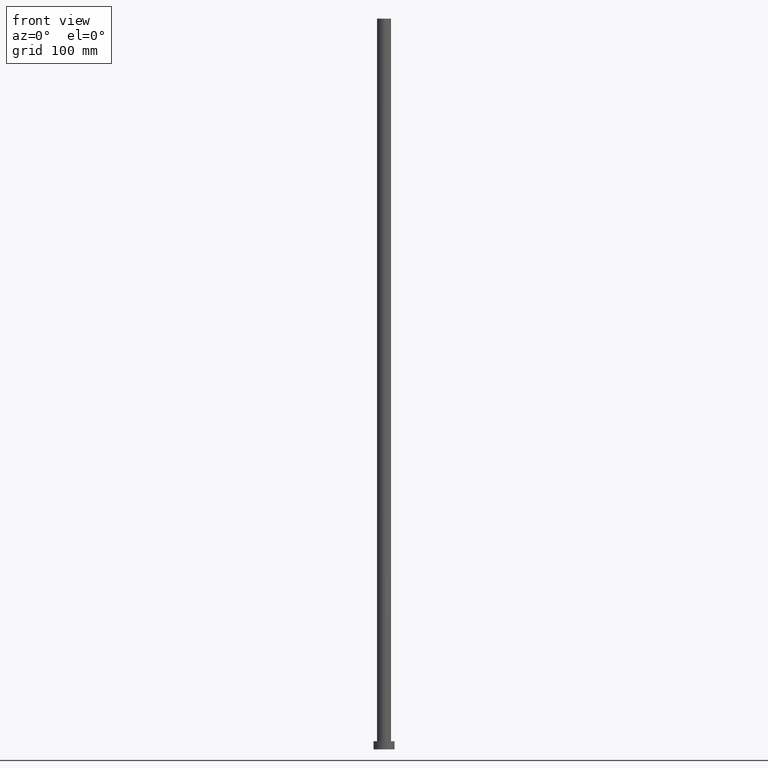
[diagram: clean part render]
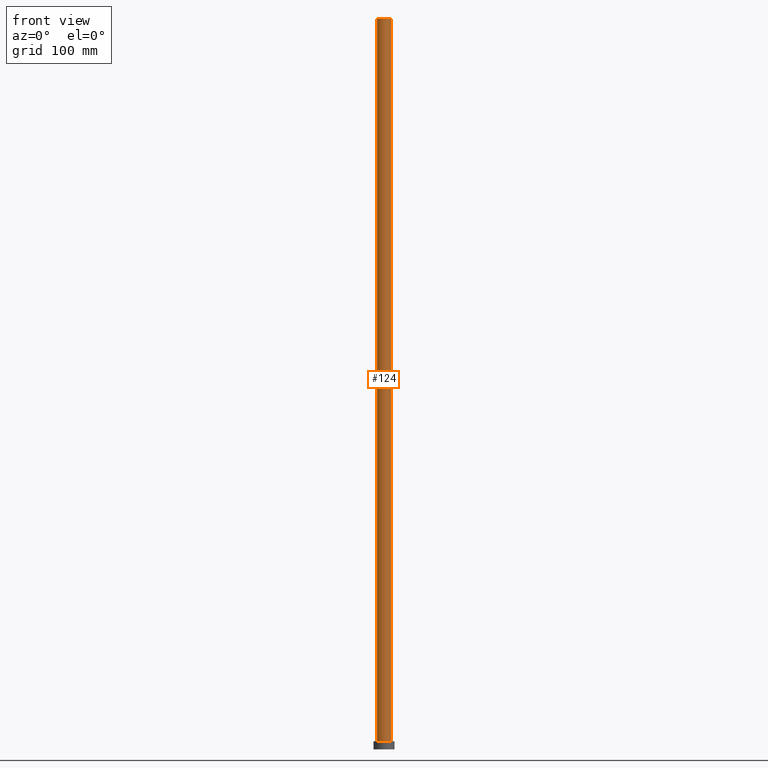
[diagram: same view with one face highlighted and labeled with its STEP entity id]
A machine part, front view. The second image highlights one B-rep face of the part: STEP entity #124.
In plain terms, the highlighted cylindrical surface (edge-blend (fillet) strip) has radius 6 mm, axis along (-0, -0, -1).
Its self-contained STEP definition (entity closure, byte-faithful):
#21 = CARTESIAN_POINT ( 'NONE',  ( 6.000000000000000888, 7.347880794884120722E-16, 7.000000000000000000 ) ) ;
#26 = EDGE_CURVE ( 'NONE', #88, #222, #193, .T. ) ;
#29 = ORIENTED_EDGE ( 'NONE', *, *, #199, .F. ) ;
#45 = ORIENTED_EDGE ( 'NONE', *, *, #241, .T. ) ;
#58 = ORIENTED_EDGE ( 'NONE', *, *, #26, .T. ) ;
#72 = CYLINDRICAL_SURFACE ( 'NONE', #202, 6.000000000000000888 ) ;
#81 = AXIS2_PLACEMENT_3D ( 'NONE', #104, #146, #167 ) ;
#83 = VERTEX_POINT ( 'NONE', #213 ) ;
#86 = DIRECTION ( 'NONE',  ( 0.000000000000000000, 0.000000000000000000, 1.000000000000000000 ) ) ;
#88 = VERTEX_POINT ( 'NONE', #191 ) ;
#101 = VECTOR ( 'NONE', #247, 1000.000000000000000 ) ;
#102 = DIRECTION ( 'NONE',  ( 1.000000000000000000, 0.000000000000000000, 0.000000000000000000 ) ) ;
#104 = CARTESIAN_POINT ( 'NONE',  ( 0.000000000000000000, 0.000000000000000000, 7.000000000000000000 ) ) ;
#109 = CIRCLE ( 'NONE', #243, 6.000000000000000888 ) ;
#113 = DIRECTION ( 'NONE',  ( -1.000000000000000000, 0.000000000000000000, 0.000000000000000000 ) ) ;
#124 = ADVANCED_FACE ( 'NONE', ( #249 ), #72, .T. ) ;
#132 = CARTESIAN_POINT ( 'NONE',  ( 0.000000000000000000, 0.000000000000000000, 630.0000000000000000 ) ) ;
#136 = CARTESIAN_POINT ( 'NONE',  ( 6.000000000000000888, 7.347880794884120722E-16, 630.0000000000000000 ) ) ;
#146 = DIRECTION ( 'NONE',  ( 0.000000000000000000, 0.000000000000000000, 1.000000000000000000 ) ) ;
#151 = CARTESIAN_POINT ( 'NONE',  ( -6.000000000000000888, 0.000000000000000000, 630.0000000000000000 ) ) ;
#152 = EDGE_CURVE ( 'NONE', #83, #156, #254, .T. ) ;
#156 = VERTEX_POINT ( 'NONE', #21 ) ;
#157 = CARTESIAN_POINT ( 'NONE',  ( -6.000000000000000888, 0.000000000000000000, 7.000000000000000000 ) ) ;
#167 = DIRECTION ( 'NONE',  ( 1.000000000000000000, 0.000000000000000000, 0.000000000000000000 ) ) ;
#182 = CARTESIAN_POINT ( 'NONE',  ( 0.000000000000000000, 0.000000000000000000, 630.0000000000000000 ) ) ;
#191 = CARTESIAN_POINT ( 'NONE',  ( -6.000000000000000888, 0.000000000000000000, 630.0000000000000000 ) ) ;
#192 = DIRECTION ( 'NONE',  ( -0.000000000000000000, -0.000000000000000000, -1.000000000000000000 ) ) ;
#193 = LINE ( 'NONE', #151, #101 ) ;
#194 = CIRCLE ( 'NONE', #81, 6.000000000000000888 ) ;
#199 = EDGE_CURVE ( 'NONE', #88, #83, #109, .T. ) ;
#202 = AXIS2_PLACEMENT_3D ( 'NONE', #132, #192, #113 ) ;
#204 = ORIENTED_EDGE ( 'NONE', *, *, #152, .F. ) ;
#213 = CARTESIAN_POINT ( 'NONE',  ( 6.000000000000000888, 7.347880794884120722E-16, 630.0000000000000000 ) ) ;
#218 = DIRECTION ( 'NONE',  ( -0.000000000000000000, -0.000000000000000000, -1.000000000000000000 ) ) ;
#221 = VECTOR ( 'NONE', #218, 1000.000000000000000 ) ;
#222 = VERTEX_POINT ( 'NONE', #157 ) ;
#236 = EDGE_LOOP ( 'NONE', ( #204, #29, #58, #45 ) ) ;
#241 = EDGE_CURVE ( 'NONE', #222, #156, #194, .T. ) ;
#243 = AXIS2_PLACEMENT_3D ( 'NONE', #182, #86, #102 ) ;
#247 = DIRECTION ( 'NONE',  ( -0.000000000000000000, -0.000000000000000000, -1.000000000000000000 ) ) ;
#249 = FACE_OUTER_BOUND ( 'NONE', #236, .T. ) ;
#254 = LINE ( 'NONE', #136, #221 ) ;